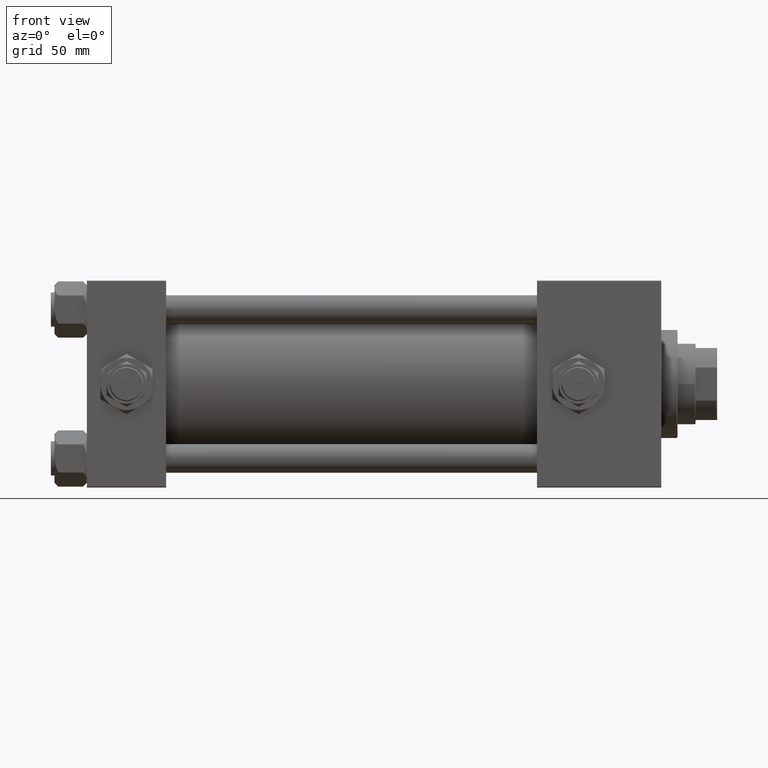
[diagram: clean part render]
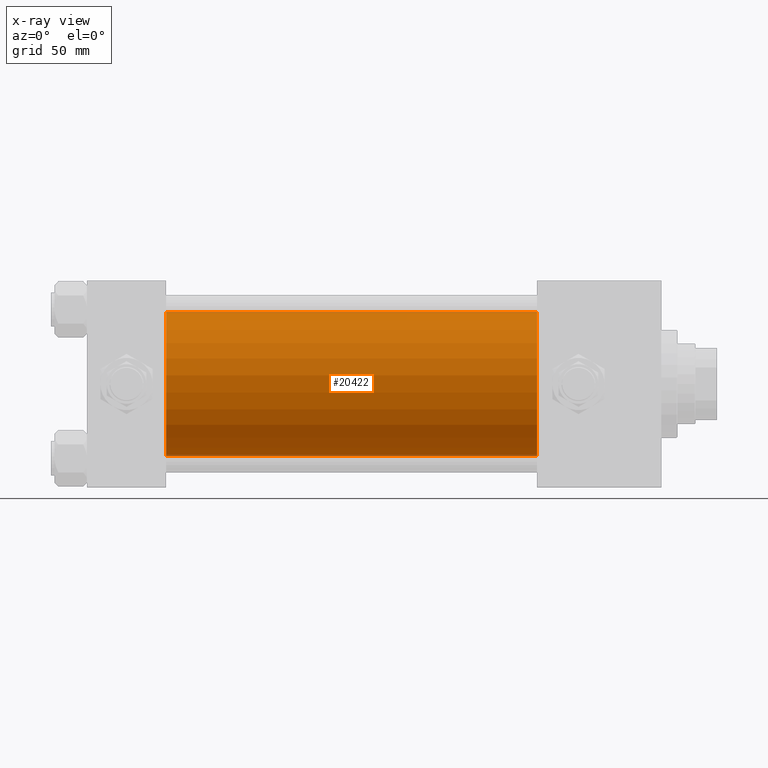
[diagram: x-ray — body ghosted, one internal face saturated and labeled with its STEP entity id]
A machine part, front view, then the same camera in x-ray: the body is ghosted and one INTERNAL B-rep face — a face not visible from any outside direction — is saturated and labeled: STEP entity #20422.
In plain terms, the highlighted cylindrical surface (partial cylindrical patch) has radius 40 mm, axis along (-1, -0, -0).
Its self-contained STEP definition (entity closure, byte-faithful):
#626 = DIRECTION ( 'NONE',  ( -1.000000000000000000, -0.000000000000000000, -0.000000000000000000 ) ) ;
#2646 = CARTESIAN_POINT ( 'NONE',  ( 250.0000000000000000, -2.602085213965210642E-15, 0.000000000000000000 ) ) ;
#5881 = LINE ( 'NONE', #46732, #11236 ) ;
#8196 = VERTEX_POINT ( 'NONE', #17792 ) ;
#8591 = VERTEX_POINT ( 'NONE', #21090 ) ;
#9131 = ORIENTED_EDGE ( 'NONE', *, *, #35558, .F. ) ;
#10490 = DIRECTION ( 'NONE',  ( 1.000000000000000000, 0.000000000000000000, 0.000000000000000000 ) ) ;
#10586 = CIRCLE ( 'NONE', #48958, 40.00000000000000000 ) ;
#11236 = VECTOR ( 'NONE', #51830, 1000.000000000000000 ) ;
#12911 = CYLINDRICAL_SURFACE ( 'NONE', #20080, 40.00000000000000000 ) ;
#12981 = CARTESIAN_POINT ( 'NONE',  ( 250.0000000000000000, 2.296501982624201990E-15, -40.00000000000000000 ) ) ;
#14116 = CIRCLE ( 'NONE', #43969, 40.00000000000000000 ) ;
#17792 = CARTESIAN_POINT ( 'NONE',  ( 44.00000000000000000, 2.296501982624201990E-15, -40.00000000000000000 ) ) ;
#18135 = EDGE_CURVE ( 'NONE', #52582, #8196, #10586, .T. ) ;
#18238 = DIRECTION ( 'NONE',  ( 0.000000000000000000, 0.000000000000000000, -1.000000000000000000 ) ) ;
#18928 = DIRECTION ( 'NONE',  ( 1.000000000000000000, 0.000000000000000000, 0.000000000000000000 ) ) ;
#20080 = AXIS2_PLACEMENT_3D ( 'NONE', #37209, #626, #29202 ) ;
#20422 = ADVANCED_FACE ( 'NONE', ( #49522 ), #12911, .F. ) ;
#21090 = CARTESIAN_POINT ( 'NONE',  ( 250.0000000000000000, -2.602085213965210642E-15, 40.00000000000000000 ) ) ;
#25210 = EDGE_CURVE ( 'NONE', #8591, #42696, #14116, .T. ) ;
#27145 = LINE ( 'NONE', #43428, #28758 ) ;
#27668 = EDGE_LOOP ( 'NONE', ( #50584, #46904, #40920, #9131 ) ) ;
#28758 = VECTOR ( 'NONE', #47720, 1000.000000000000000 ) ;
#28849 = EDGE_CURVE ( 'NONE', #42696, #8196, #27145, .T. ) ;
#29202 = DIRECTION ( 'NONE',  ( 0.000000000000000000, 0.000000000000000000, 1.000000000000000000 ) ) ;
#35558 = EDGE_CURVE ( 'NONE', #8591, #52582, #5881, .T. ) ;
#37209 = CARTESIAN_POINT ( 'NONE',  ( 250.0000000000000000, -2.602085213965210642E-15, 0.000000000000000000 ) ) ;
#38684 = DIRECTION ( 'NONE',  ( 0.000000000000000000, 0.000000000000000000, -1.000000000000000000 ) ) ;
#39057 = CARTESIAN_POINT ( 'NONE',  ( 44.00000000000000000, -2.602085213965210642E-15, 0.000000000000000000 ) ) ;
#40920 = ORIENTED_EDGE ( 'NONE', *, *, #18135, .F. ) ;
#42696 = VERTEX_POINT ( 'NONE', #12981 ) ;
#43428 = CARTESIAN_POINT ( 'NONE',  ( 250.0000000000000000, 2.296501982624201990E-15, -40.00000000000000000 ) ) ;
#43969 = AXIS2_PLACEMENT_3D ( 'NONE', #2646, #18928, #38684 ) ;
#46732 = CARTESIAN_POINT ( 'NONE',  ( 250.0000000000000000, -2.602085213965210642E-15, 40.00000000000000000 ) ) ;
#46904 = ORIENTED_EDGE ( 'NONE', *, *, #28849, .T. ) ;
#47175 = CARTESIAN_POINT ( 'NONE',  ( 44.00000000000000000, -2.602085213965210642E-15, 40.00000000000000000 ) ) ;
#47720 = DIRECTION ( 'NONE',  ( -1.000000000000000000, -0.000000000000000000, -0.000000000000000000 ) ) ;
#48958 = AXIS2_PLACEMENT_3D ( 'NONE', #39057, #10490, #18238 ) ;
#49522 = FACE_OUTER_BOUND ( 'NONE', #27668, .T. ) ;
#50584 = ORIENTED_EDGE ( 'NONE', *, *, #25210, .T. ) ;
#51830 = DIRECTION ( 'NONE',  ( -1.000000000000000000, -0.000000000000000000, -0.000000000000000000 ) ) ;
#52582 = VERTEX_POINT ( 'NONE', #47175 ) ;